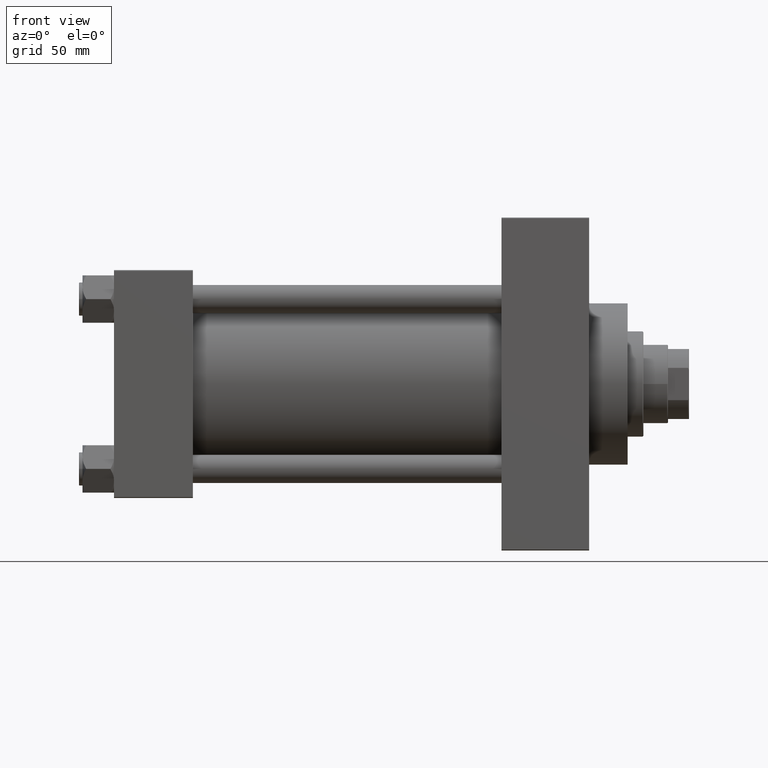
[diagram: clean part render]
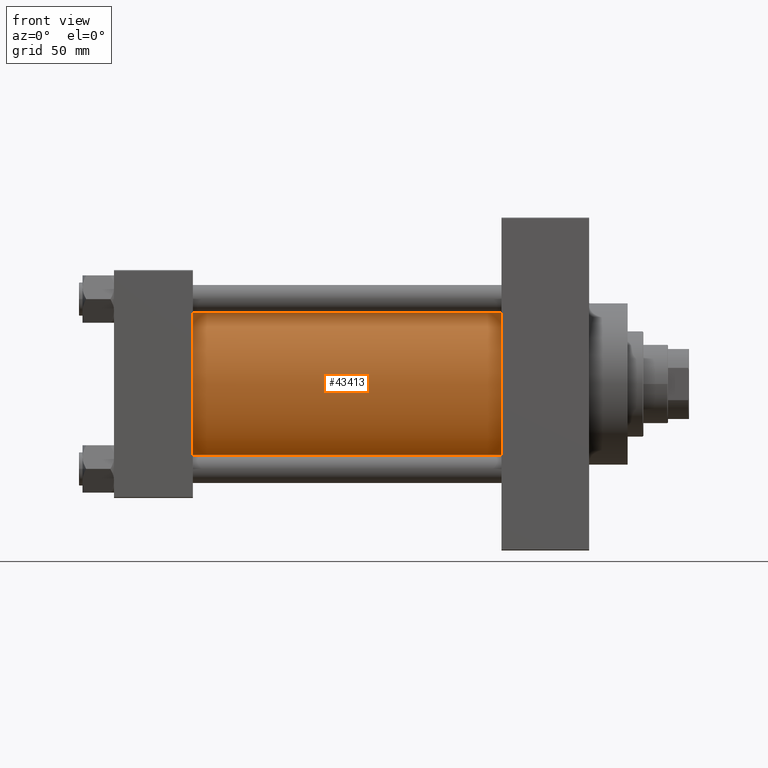
[diagram: same view with one face highlighted and labeled with its STEP entity id]
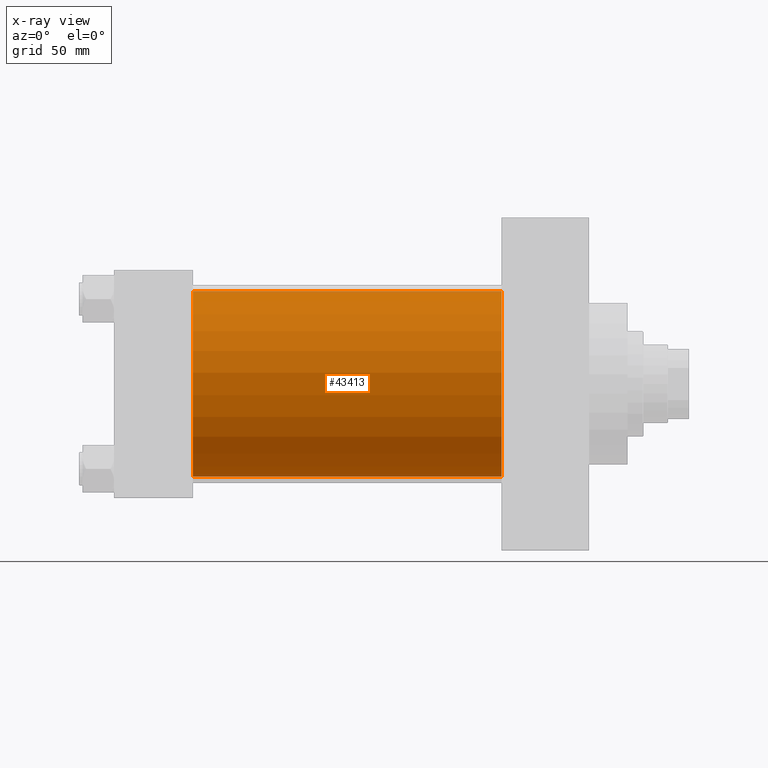
[diagram: x-ray of the same camera — body ghosted, the highlighted face saturated]
A machine part, front view. The second image highlights one B-rep face of the part: STEP entity #43413.
The next image is the same camera in x-ray: the body ghosted, the highlighted face saturated — about 2% of this face is hidden behind the body in this view.
In plain terms, the highlighted cylindrical surface (partial cylindrical patch) has radius 53 mm, axis along (-1, -0, -0).
Its self-contained STEP definition (entity closure, byte-faithful):
#157 = LINE ( 'NONE', #33584, #33592 ) ;
#659 = CIRCLE ( 'NONE', #36247, 53.00000000000000711 ) ;
#3389 = VERTEX_POINT ( 'NONE', #13695 ) ;
#3871 = VERTEX_POINT ( 'NONE', #26463 ) ;
#3924 = VERTEX_POINT ( 'NONE', #8990 ) ;
#7448 = ORIENTED_EDGE ( 'NONE', *, *, #19631, .T. ) ;
#7953 = DIRECTION ( 'NONE',  ( 0.000000000000000000, 0.000000000000000000, -1.000000000000000000 ) ) ;
#8990 = CARTESIAN_POINT ( 'NONE',  ( 220.9999999999999716, 3.888542821515762466E-15, -53.00000000000000711 ) ) ;
#9864 = AXIS2_PLACEMENT_3D ( 'NONE', #28324, #16460, #20587 ) ;
#10869 = DIRECTION ( 'NONE',  ( 1.000000000000000000, 0.000000000000000000, 0.000000000000000000 ) ) ;
#11101 = LINE ( 'NONE', #11817, #22720 ) ;
#11817 = CARTESIAN_POINT ( 'NONE',  ( 220.9999999999999716, -2.602085213965210642E-15, 53.00000000000000711 ) ) ;
#12414 = CARTESIAN_POINT ( 'NONE',  ( 44.99999999999998579, -2.602085213965210642E-15, 0.000000000000000000 ) ) ;
#12877 = AXIS2_PLACEMENT_3D ( 'NONE', #44521, #10869, #7953 ) ;
#12896 = DIRECTION ( 'NONE',  ( 0.000000000000000000, 0.000000000000000000, 1.000000000000000000 ) ) ;
#13128 = DIRECTION ( 'NONE',  ( 1.000000000000000000, -0.000000000000000000, 0.000000000000000000 ) ) ;
#13528 = FACE_OUTER_BOUND ( 'NONE', #29750, .T. ) ;
#13695 = CARTESIAN_POINT ( 'NONE',  ( 44.99999999999998579, -2.602085213965210642E-15, 53.00000000000000711 ) ) ;
#14805 = ORIENTED_EDGE ( 'NONE', *, *, #31534, .T. ) ;
#15928 = ORIENTED_EDGE ( 'NONE', *, *, #40469, .F. ) ;
#16460 = DIRECTION ( 'NONE',  ( -1.000000000000000000, -0.000000000000000000, -0.000000000000000000 ) ) ;
#19631 = EDGE_CURVE ( 'NONE', #3389, #3871, #659, .T. ) ;
#20587 = DIRECTION ( 'NONE',  ( 0.000000000000000000, 0.000000000000000000, 1.000000000000000000 ) ) ;
#21987 = DIRECTION ( 'NONE',  ( -1.000000000000000000, -0.000000000000000000, -0.000000000000000000 ) ) ;
#22720 = VECTOR ( 'NONE', #25898, 1000.000000000000000 ) ;
#24377 = CARTESIAN_POINT ( 'NONE',  ( 220.9999999999999716, -2.602085213965210642E-15, 53.00000000000000711 ) ) ;
#25898 = DIRECTION ( 'NONE',  ( -1.000000000000000000, -0.000000000000000000, -0.000000000000000000 ) ) ;
#26463 = CARTESIAN_POINT ( 'NONE',  ( 44.99999999999998579, 3.888542821515762466E-15, -53.00000000000000711 ) ) ;
#28324 = CARTESIAN_POINT ( 'NONE',  ( 220.9999999999999716, -2.602085213965210642E-15, 0.000000000000000000 ) ) ;
#29750 = EDGE_LOOP ( 'NONE', ( #38826, #15928, #14805, #7448 ) ) ;
#31534 = EDGE_CURVE ( 'NONE', #33464, #3389, #11101, .T. ) ;
#33171 = EDGE_CURVE ( 'NONE', #3924, #3871, #157, .T. ) ;
#33464 = VERTEX_POINT ( 'NONE', #24377 ) ;
#33584 = CARTESIAN_POINT ( 'NONE',  ( 220.9999999999999716, 3.888542821515762466E-15, -53.00000000000000711 ) ) ;
#33592 = VECTOR ( 'NONE', #21987, 1000.000000000000000 ) ;
#36057 = CYLINDRICAL_SURFACE ( 'NONE', #9864, 53.00000000000000711 ) ;
#36247 = AXIS2_PLACEMENT_3D ( 'NONE', #12414, #13128, #12896 ) ;
#38826 = ORIENTED_EDGE ( 'NONE', *, *, #33171, .F. ) ;
#39162 = CIRCLE ( 'NONE', #12877, 53.00000000000000711 ) ;
#40469 = EDGE_CURVE ( 'NONE', #33464, #3924, #39162, .T. ) ;
#43413 = ADVANCED_FACE ( 'NONE', ( #13528 ), #36057, .T. ) ;
#44521 = CARTESIAN_POINT ( 'NONE',  ( 220.9999999999999716, -2.602085213965210642E-15, 0.000000000000000000 ) ) ;